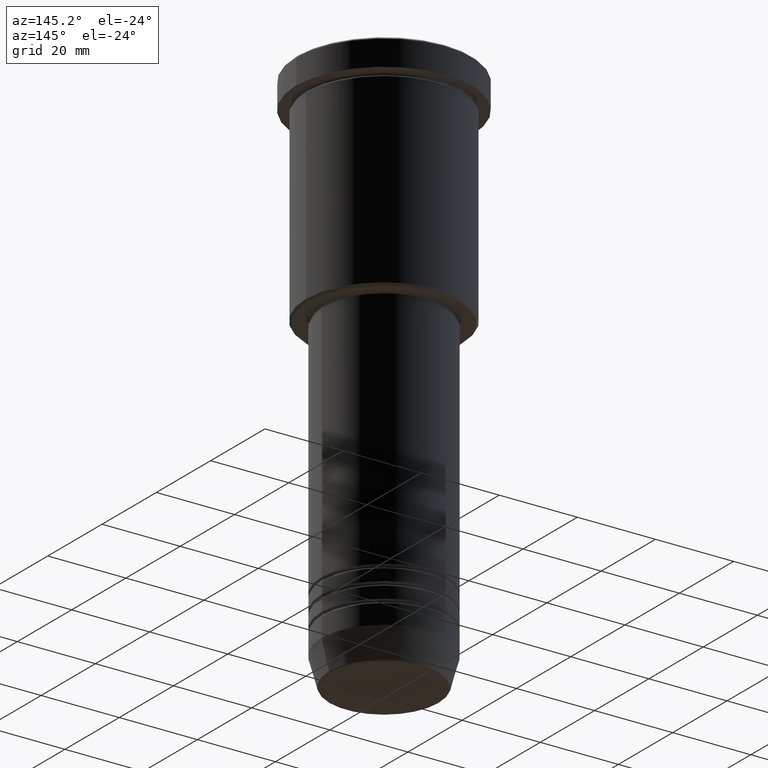
[diagram: clean part render]
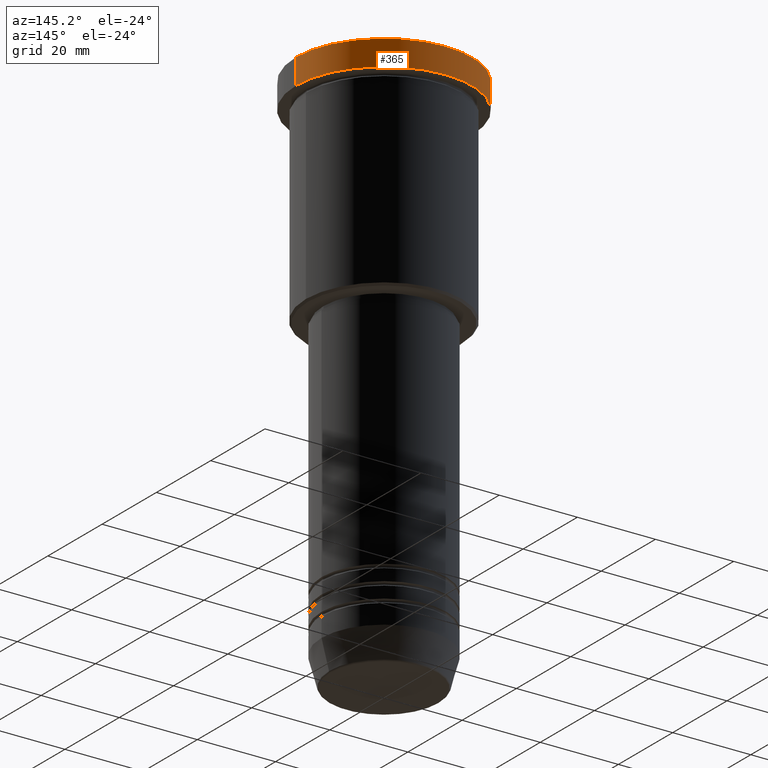
[diagram: same view with one face highlighted and labeled with its STEP entity id]
A machine part, auxiliary view. The second image highlights one B-rep face of the part: STEP entity #365.
In plain terms, the highlighted cylindrical surface (partial cylindrical patch) has radius 22.5 mm, axis along (-0, -0, 1).
Its self-contained STEP definition (entity closure, byte-faithful):
#20 = ORIENTED_EDGE ( 'NONE', *, *, #249, .F. ) ;
#58 = VERTEX_POINT ( 'NONE', #997 ) ;
#87 = DIRECTION ( 'NONE',  ( -0.000000000000000000, -0.000000000000000000, 1.000000000000000000 ) ) ;
#108 = AXIS2_PLACEMENT_3D ( 'NONE', #901, #87, #820 ) ;
#118 = DIRECTION ( 'NONE',  ( -0.000000000000000000, -0.000000000000000000, 1.000000000000000000 ) ) ;
#138 = LINE ( 'NONE', #667, #418 ) ;
#199 = CIRCLE ( 'NONE', #108, 22.50000000000000000 ) ;
#217 = CIRCLE ( 'NONE', #256, 22.50000000000000000 ) ;
#249 = EDGE_CURVE ( 'NONE', #1120, #58, #635, .T. ) ;
#256 = AXIS2_PLACEMENT_3D ( 'NONE', #416, #770, #1125 ) ;
#365 = ADVANCED_FACE ( 'NONE', ( #496 ), #491, .T. ) ;
#372 = ORIENTED_EDGE ( 'NONE', *, *, #732, .T. ) ;
#374 = CARTESIAN_POINT ( 'NONE',  ( -22.50000000000000000, 2.755455298081544778E-15, -0.4999999999999657496 ) ) ;
#416 = CARTESIAN_POINT ( 'NONE',  ( 0.000000000000000000, 0.000000000000000000, -0.4999999999999657496 ) ) ;
#418 = VECTOR ( 'NONE', #118, 1000.000000000000000 ) ;
#483 = CARTESIAN_POINT ( 'NONE',  ( 22.50000000000000000, 0.000000000000000000, -6.999999999999995559 ) ) ;
#491 = CYLINDRICAL_SURFACE ( 'NONE', #794, 22.50000000000000000 ) ;
#496 = FACE_OUTER_BOUND ( 'NONE', #915, .T. ) ;
#516 = DIRECTION ( 'NONE',  ( -0.000000000000000000, -0.000000000000000000, 1.000000000000000000 ) ) ;
#540 = ORIENTED_EDGE ( 'NONE', *, *, #724, .T. ) ;
#550 = CARTESIAN_POINT ( 'NONE',  ( -22.50000000000000000, 2.755455298081544778E-15, -6.999999999999995559 ) ) ;
#635 = LINE ( 'NONE', #1002, #656 ) ;
#656 = VECTOR ( 'NONE', #516, 1000.000000000000000 ) ;
#667 = CARTESIAN_POINT ( 'NONE',  ( -22.50000000000000000, 2.755455298081544778E-15, 0.000000000000000000 ) ) ;
#724 = EDGE_CURVE ( 'NONE', #948, #58, #217, .T. ) ;
#732 = EDGE_CURVE ( 'NONE', #973, #948, #138, .T. ) ;
#770 = DIRECTION ( 'NONE',  ( 0.000000000000000000, 0.000000000000000000, -1.000000000000000000 ) ) ;
#794 = AXIS2_PLACEMENT_3D ( 'NONE', #856, #1122, #1027 ) ;
#820 = DIRECTION ( 'NONE',  ( 1.000000000000000000, 0.000000000000000000, 0.000000000000000000 ) ) ;
#848 = ORIENTED_EDGE ( 'NONE', *, *, #1046, .T. ) ;
#856 = CARTESIAN_POINT ( 'NONE',  ( 0.000000000000000000, 0.000000000000000000, 0.000000000000000000 ) ) ;
#901 = CARTESIAN_POINT ( 'NONE',  ( 0.000000000000000000, 0.000000000000000000, -6.999999999999995559 ) ) ;
#915 = EDGE_LOOP ( 'NONE', ( #848, #372, #540, #20 ) ) ;
#948 = VERTEX_POINT ( 'NONE', #374 ) ;
#973 = VERTEX_POINT ( 'NONE', #550 ) ;
#997 = CARTESIAN_POINT ( 'NONE',  ( 22.50000000000000000, 0.000000000000000000, -0.4999999999999657496 ) ) ;
#1002 = CARTESIAN_POINT ( 'NONE',  ( 22.50000000000000000, 0.000000000000000000, 0.000000000000000000 ) ) ;
#1027 = DIRECTION ( 'NONE',  ( 1.000000000000000000, 0.000000000000000000, 0.000000000000000000 ) ) ;
#1046 = EDGE_CURVE ( 'NONE', #1120, #973, #199, .T. ) ;
#1120 = VERTEX_POINT ( 'NONE', #483 ) ;
#1122 = DIRECTION ( 'NONE',  ( -0.000000000000000000, -0.000000000000000000, 1.000000000000000000 ) ) ;
#1125 = DIRECTION ( 'NONE',  ( 1.000000000000000000, 0.000000000000000000, 0.000000000000000000 ) ) ;